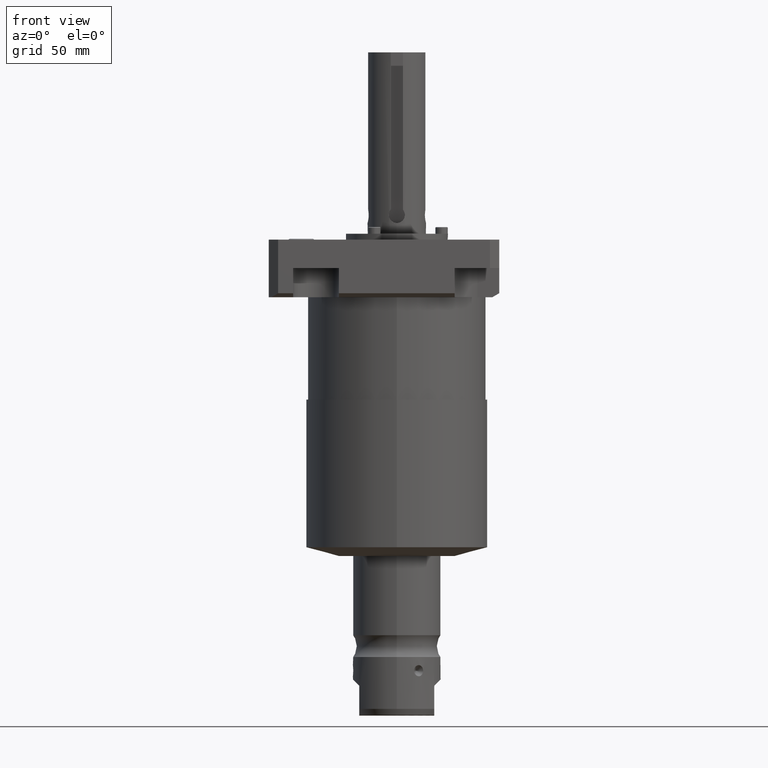
[diagram: clean part render]
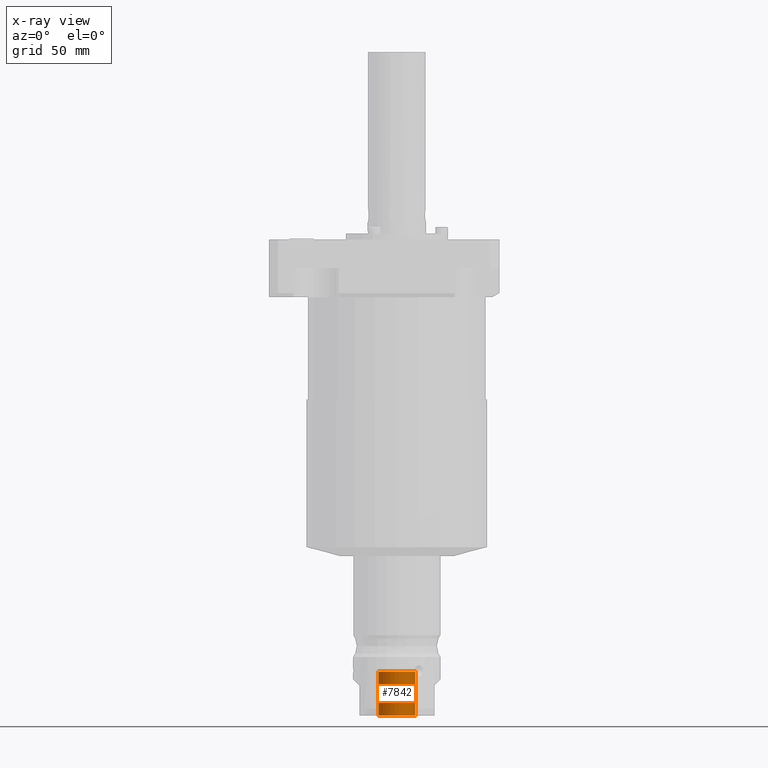
[diagram: x-ray — body ghosted, one internal face saturated and labeled with its STEP entity id]
A machine part, front view, then the same camera in x-ray: the body is ghosted and one INTERNAL B-rep face — a face not visible from any outside direction — is saturated and labeled: STEP entity #7842.
In plain terms, the highlighted cylindrical surface (edge-blend (fillet) strip) has radius 8 mm, axis along (0, 0, -1).
Its self-contained STEP definition (entity closure, byte-faithful):
#7777=CARTESIAN_POINT('',(0.E0,0.E0,-1.81585E2));
#7778=DIRECTION('',(0.E0,0.E0,-1.E0));
#7779=DIRECTION('',(1.E0,0.E0,0.E0));
#7780=AXIS2_PLACEMENT_3D('',#7777,#7778,#7779);
#7782=DIRECTION('',(0.E0,0.E0,1.E0));
#7783=VECTOR('',#7782,1.905E1);
#7784=CARTESIAN_POINT('',(8.E0,0.E0,-1.81585E2));
#7785=LINE('',#7784,#7783);
#7791=DIRECTION('',(0.E0,0.E0,1.E0));
#7792=VECTOR('',#7791,1.905E1);
#7793=CARTESIAN_POINT('',(-8.E0,0.E0,-1.81585E2));
#7794=LINE('',#7793,#7792);
#7800=CARTESIAN_POINT('',(0.E0,0.E0,-1.62535E2));
#7801=DIRECTION('',(0.E0,0.E0,-1.E0));
#7802=DIRECTION('',(1.E0,0.E0,0.E0));
#7803=AXIS2_PLACEMENT_3D('',#7800,#7801,#7802);
#7815=CARTESIAN_POINT('',(-8.E0,0.E0,-1.81585E2));
#7816=CARTESIAN_POINT('',(8.E0,0.E0,-1.81585E2));
#7817=VERTEX_POINT('',#7815);
#7818=VERTEX_POINT('',#7816);
#7819=CARTESIAN_POINT('',(-8.E0,0.E0,-1.62535E2));
#7820=CARTESIAN_POINT('',(8.E0,0.E0,-1.62535E2));
#7821=VERTEX_POINT('',#7819);
#7822=VERTEX_POINT('',#7820);
#7827=CARTESIAN_POINT('',(0.E0,0.E0,-1.81585E2));
#7828=DIRECTION('',(0.E0,0.E0,-1.E0));
#7829=DIRECTION('',(-1.E0,0.E0,0.E0));
#7830=AXIS2_PLACEMENT_3D('',#7827,#7828,#7829);
#7831=CYLINDRICAL_SURFACE('',#7830,8.E0);
#7833=ORIENTED_EDGE('',*,*,#7832,.T.);
#7835=ORIENTED_EDGE('',*,*,#7834,.T.);
#7837=ORIENTED_EDGE('',*,*,#7836,.F.);
#7839=ORIENTED_EDGE('',*,*,#7838,.F.);
#7840=EDGE_LOOP('',(#7833,#7835,#7837,#7839));
#7841=FACE_OUTER_BOUND('',#7840,.F.);
#7781=CIRCLE('',#7780,8.E0);
#7804=CIRCLE('',#7803,8.E0);
#7832=EDGE_CURVE('',#7818,#7817,#7781,.T.);
#7834=EDGE_CURVE('',#7817,#7821,#7794,.T.);
#7836=EDGE_CURVE('',#7822,#7821,#7804,.T.);
#7838=EDGE_CURVE('',#7818,#7822,#7785,.T.);
#7842=ADVANCED_FACE('',(#7841),#7831,.T.);